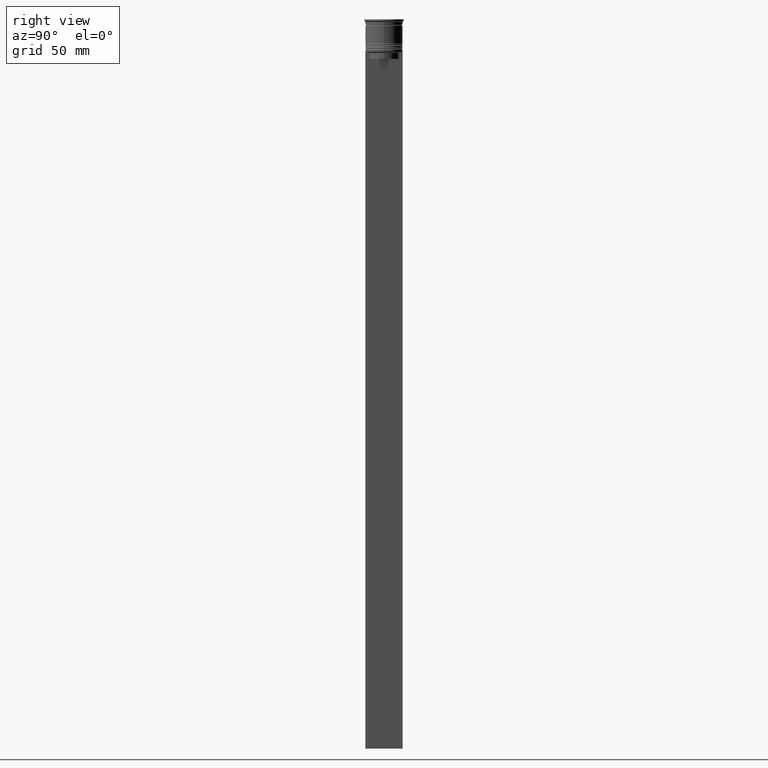
[diagram: clean part render]
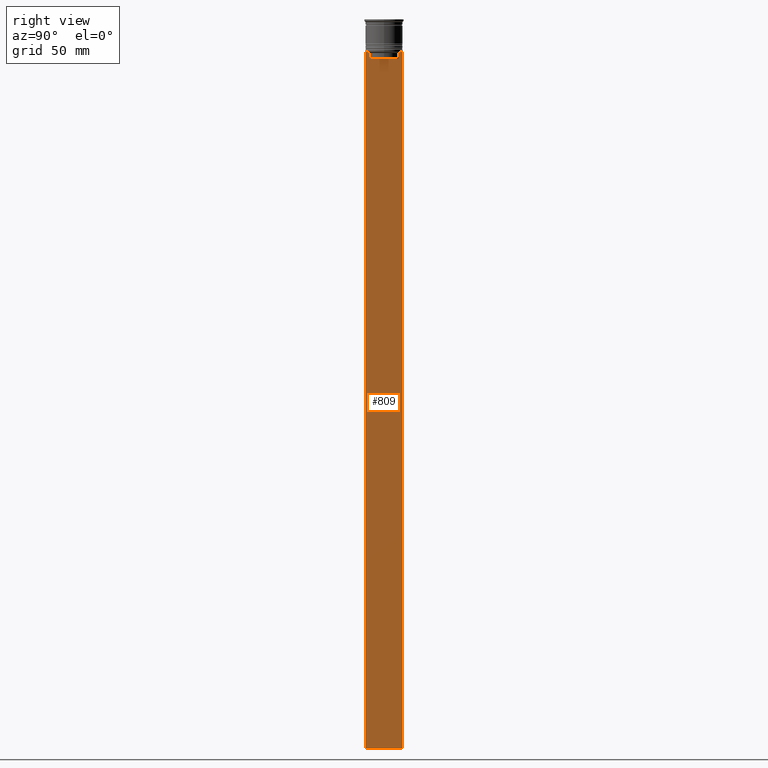
[diagram: same view with one face highlighted and labeled with its STEP entity id]
A machine part, right view. The second image highlights one B-rep face of the part: STEP entity #809.
In plain terms, the highlighted planar face has unit normal (-1, 0, 0).
Its self-contained STEP definition (entity closure, byte-faithful):
#5 = CARTESIAN_POINT ( 'NONE',  ( 0.5000000000000001110, -6.547597841511247019, -14.33335192438652150 ) ) ;
#88 = CARTESIAN_POINT ( 'NONE',  ( 0.5000000000000001110, -8.000000000000003553, -314.0000000000000000 ) ) ;
#152 = ORIENTED_EDGE ( 'NONE', *, *, #952, .T. ) ;
#175 = VECTOR ( 'NONE', #347, 1000.000000000000000 ) ;
#185 = CARTESIAN_POINT ( 'NONE',  ( 0.5000000000000001110, 6.380438856379708312, -14.50000000000000000 ) ) ;
#197 = LINE ( 'NONE', #2301, #2110 ) ;
#280 = EDGE_CURVE ( 'NONE', #767, #353, #1272, .T. ) ;
#307 = CARTESIAN_POINT ( 'NONE',  ( 0.5000000000000001110, 6.380438856379708312, 0.000000000000000000 ) ) ;
#327 = CARTESIAN_POINT ( 'NONE',  ( 0.5000000000000001110, 7.999999999999996447, 2.031219541881394530 ) ) ;
#347 = DIRECTION ( 'NONE',  ( 0.000000000000000000, -1.000000000000000000, 0.000000000000000000 ) ) ;
#353 = VERTEX_POINT ( 'NONE', #1676 ) ;
#374 = VECTOR ( 'NONE', #2326, 1000.000000000000000 ) ;
#415 = ORIENTED_EDGE ( 'NONE', *, *, #2102, .T. ) ;
#430 = CARTESIAN_POINT ( 'NONE',  ( 0.5000000000000001110, 7.999999999999996447, -314.0000000000000000 ) ) ;
#463 = CARTESIAN_POINT ( 'NONE',  ( 0.5000000000000001110, -8.000000000000003553, -14.00000000000000178 ) ) ;
#466 = VERTEX_POINT ( 'NONE', #632 ) ;
#491 = VERTEX_POINT ( 'NONE', #430 ) ;
#499 = LINE ( 'NONE', #1103, #175 ) ;
#513 = VERTEX_POINT ( 'NONE', #970 ) ;
#529 = DIRECTION ( 'NONE',  ( 0.000000000000000000, 1.000000000000000000, 0.000000000000000000 ) ) ;
#555 = EDGE_CURVE ( 'NONE', #1849, #646, #982, .T. ) ;
#565 = CARTESIAN_POINT ( 'NONE',  ( 0.5000000000000001110, -8.000000000000003553, -14.00000000000000178 ) ) ;
#574 = LINE ( 'NONE', #1321, #2186 ) ;
#632 = CARTESIAN_POINT ( 'NONE',  ( 0.5000000000000001110, 6.881860213634098500, -14.00000000000000178 ) ) ;
#646 = VERTEX_POINT ( 'NONE', #1415 ) ;
#654 = EDGE_CURVE ( 'NONE', #926, #513, #835, .T. ) ;
#712 = CARTESIAN_POINT ( 'NONE',  ( 0.5000000000000001110, -8.000000000000003553, 2.031219541881394530 ) ) ;
#718 = EDGE_CURVE ( 'NONE', #926, #491, #1662, .T. ) ;
#727 = CARTESIAN_POINT ( 'NONE',  ( 0.5000000000000001110, 6.881860213634098500, -14.00000000000000178 ) ) ;
#735 = FACE_OUTER_BOUND ( 'NONE', #986, .T. ) ;
#753 = ORIENTED_EDGE ( 'NONE', *, *, #2165, .T. ) ;
#761 = VERTEX_POINT ( 'NONE', #1508 ) ;
#763 = CARTESIAN_POINT ( 'NONE',  ( 0.5000000000000001110, 6.714736947114692711, -14.16668390704818847 ) ) ;
#767 = VERTEX_POINT ( 'NONE', #1273 ) ;
#772 = EDGE_CURVE ( 'NONE', #353, #761, #499, .T. ) ;
#790 = CARTESIAN_POINT ( 'NONE',  ( 0.5000000000000001110, -8.000000000000003553, -14.00000000000000178 ) ) ;
#794 = ORIENTED_EDGE ( 'NONE', *, *, #772, .T. ) ;
#805 = CARTESIAN_POINT ( 'NONE',  ( 0.5000000000000001110, -6.881860213634098500, -14.00000000000000178 ) ) ;
#809 = ADVANCED_FACE ( 'NONE', ( #735 ), #2087, .F. ) ;
#835 = LINE ( 'NONE', #463, #1310 ) ;
#839 = ORIENTED_EDGE ( 'NONE', *, *, #2386, .T. ) ;
#846 = ORIENTED_EDGE ( 'NONE', *, *, #718, .F. ) ;
#918 = DIRECTION ( 'NONE',  ( 0.000000000000000000, 0.000000000000000000, -1.000000000000000000 ) ) ;
#926 = VERTEX_POINT ( 'NONE', #1567 ) ;
#943 = LINE ( 'NONE', #1910, #2231 ) ;
#952 = EDGE_CURVE ( 'NONE', #1571, #1849, #2048, .T. ) ;
#970 = CARTESIAN_POINT ( 'NONE',  ( 0.5000000000000001110, 7.884161337770806632, -14.00000000000000178 ) ) ;
#982 = LINE ( 'NONE', #790, #374 ) ;
#986 = EDGE_LOOP ( 'NONE', ( #1089, #415, #1253, #794, #753, #152, #2253, #1270, #839, #1247, #846, #1596 ) ) ;
#1026 = AXIS2_PLACEMENT_3D ( 'NONE', #712, #1856, #1088 ) ;
#1055 = VERTEX_POINT ( 'NONE', #88 ) ;
#1088 = DIRECTION ( 'NONE',  ( 0.000000000000000000, 0.000000000000000000, 1.000000000000000000 ) ) ;
#1089 = ORIENTED_EDGE ( 'NONE', *, *, #1628, .T. ) ;
#1103 = CARTESIAN_POINT ( 'NONE',  ( 0.5000000000000001110, 6.399999999999999467, -17.00000000000000000 ) ) ;
#1120 = LINE ( 'NONE', #1900, #1998 ) ;
#1123 = DIRECTION ( 'NONE',  ( 0.000000000000000000, -1.000000000000000000, 0.000000000000000000 ) ) ;
#1219 = DIRECTION ( 'NONE',  ( 0.000000000000000000, -1.000000000000000000, 0.000000000000000000 ) ) ;
#1247 = ORIENTED_EDGE ( 'NONE', *, *, #2450, .T. ) ;
#1253 = ORIENTED_EDGE ( 'NONE', *, *, #280, .T. ) ;
#1256 = EDGE_CURVE ( 'NONE', #646, #2103, #1376, .T. ) ;
#1270 = ORIENTED_EDGE ( 'NONE', *, *, #1256, .T. ) ;
#1272 = LINE ( 'NONE', #307, #2105 ) ;
#1273 = CARTESIAN_POINT ( 'NONE',  ( 0.5000000000000001110, 6.380438856379708312, -14.50000000000000000 ) ) ;
#1310 = VECTOR ( 'NONE', #1219, 1000.000000000000000 ) ;
#1321 = CARTESIAN_POINT ( 'NONE',  ( 0.5000000000000001110, -8.000000000000003553, -14.00000000000000178 ) ) ;
#1330 = CARTESIAN_POINT ( 'NONE',  ( 0.5000000000000001110, 6.547597841304911626, -14.33335192459222718 ) ) ;
#1331 = DIRECTION ( 'NONE',  ( 0.000000000000000000, 0.000000000000000000, -1.000000000000000000 ) ) ;
#1337 = DIRECTION ( 'NONE',  ( 0.000000000000000000, -1.000000000000000000, 0.000000000000000000 ) ) ;
#1369 = DIRECTION ( 'NONE',  ( -0.000000000000000000, -0.000000000000000000, 1.000000000000000000 ) ) ;
#1376 = LINE ( 'NONE', #565, #1763 ) ;
#1387 = CARTESIAN_POINT ( 'NONE',  ( 0.5000000000000001110, -6.714736947305993908, -14.16668390685738821 ) ) ;
#1415 = CARTESIAN_POINT ( 'NONE',  ( 0.5000000000000001110, -7.884161337770806632, -14.00000000000000178 ) ) ;
#1508 = CARTESIAN_POINT ( 'NONE',  ( 0.5000000000000001110, -6.380438856379708312, -17.00000000000000000 ) ) ;
#1567 = CARTESIAN_POINT ( 'NONE',  ( 0.5000000000000001110, 7.999999999999996447, -14.00000000000000178 ) ) ;
#1571 = VERTEX_POINT ( 'NONE', #2255 ) ;
#1596 = ORIENTED_EDGE ( 'NONE', *, *, #654, .T. ) ;
#1628 = EDGE_CURVE ( 'NONE', #513, #466, #574, .T. ) ;
#1657 = B_SPLINE_CURVE_WITH_KNOTS ( 'NONE', 3,
 ( #727, #763, #1330, #185 ),
 .UNSPECIFIED., .F., .F.,
 ( 4, 4 ),
 ( 0.01172465562756038263, 0.01243276816391822651 ),
 .UNSPECIFIED. ) ;
#1661 = DIRECTION ( 'NONE',  ( 0.000000000000000000, 0.000000000000000000, -1.000000000000000000 ) ) ;
#1662 = LINE ( 'NONE', #327, #2468 ) ;
#1676 = CARTESIAN_POINT ( 'NONE',  ( 0.5000000000000001110, 6.380438856379708312, -17.00000000000000000 ) ) ;
#1763 = VECTOR ( 'NONE', #1337, 1000.000000000000000 ) ;
#1849 = VERTEX_POINT ( 'NONE', #805 ) ;
#1856 = DIRECTION ( 'NONE',  ( -1.000000000000000000, 0.000000000000000000, 0.000000000000000000 ) ) ;
#1900 = CARTESIAN_POINT ( 'NONE',  ( 0.5000000000000001110, -8.000000000000003553, 2.031219541881394530 ) ) ;
#1910 = CARTESIAN_POINT ( 'NONE',  ( 0.5000000000000001110, -8.000000000000003553, -314.0000000000000000 ) ) ;
#1933 = CARTESIAN_POINT ( 'NONE',  ( 0.5000000000000001110, -6.380438856379708312, -14.50000000000000000 ) ) ;
#1935 = CARTESIAN_POINT ( 'NONE',  ( 0.5000000000000001110, -8.000000000000003553, -14.00000000000000178 ) ) ;
#1998 = VECTOR ( 'NONE', #1331, 1000.000000000000000 ) ;
#2048 = B_SPLINE_CURVE_WITH_KNOTS ( 'NONE', 3,
 ( #1933, #5, #1387, #2313 ),
 .UNSPECIFIED., .F., .F.,
 ( 4, 4 ),
 ( 0.02996184199614751464, 0.03067452609193705923 ),
 .UNSPECIFIED. ) ;
#2087 = PLANE ( 'NONE',  #1026 ) ;
#2102 = EDGE_CURVE ( 'NONE', #466, #767, #1657, .T. ) ;
#2103 = VERTEX_POINT ( 'NONE', #1935 ) ;
#2105 = VECTOR ( 'NONE', #1661, 1000.000000000000000 ) ;
#2110 = VECTOR ( 'NONE', #1369, 1000.000000000000000 ) ;
#2165 = EDGE_CURVE ( 'NONE', #761, #1571, #197, .T. ) ;
#2186 = VECTOR ( 'NONE', #1123, 1000.000000000000000 ) ;
#2231 = VECTOR ( 'NONE', #529, 1000.000000000000000 ) ;
#2253 = ORIENTED_EDGE ( 'NONE', *, *, #555, .T. ) ;
#2255 = CARTESIAN_POINT ( 'NONE',  ( 0.5000000000000001110, -6.380438856379708312, -14.50000000000000000 ) ) ;
#2301 = CARTESIAN_POINT ( 'NONE',  ( 0.5000000000000001110, -6.380438856379708312, 0.000000000000000000 ) ) ;
#2313 = CARTESIAN_POINT ( 'NONE',  ( 0.5000000000000001110, -6.881860213634098500, -14.00000000000000178 ) ) ;
#2326 = DIRECTION ( 'NONE',  ( 0.000000000000000000, -1.000000000000000000, 0.000000000000000000 ) ) ;
#2386 = EDGE_CURVE ( 'NONE', #2103, #1055, #1120, .T. ) ;
#2450 = EDGE_CURVE ( 'NONE', #1055, #491, #943, .T. ) ;
#2468 = VECTOR ( 'NONE', #918, 1000.000000000000000 ) ;